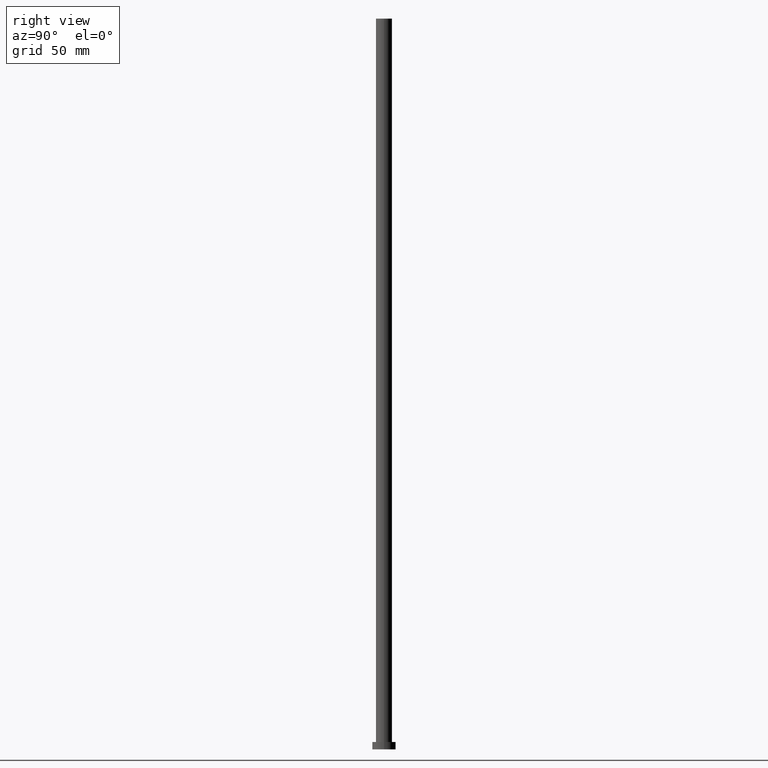
[diagram: clean part render]
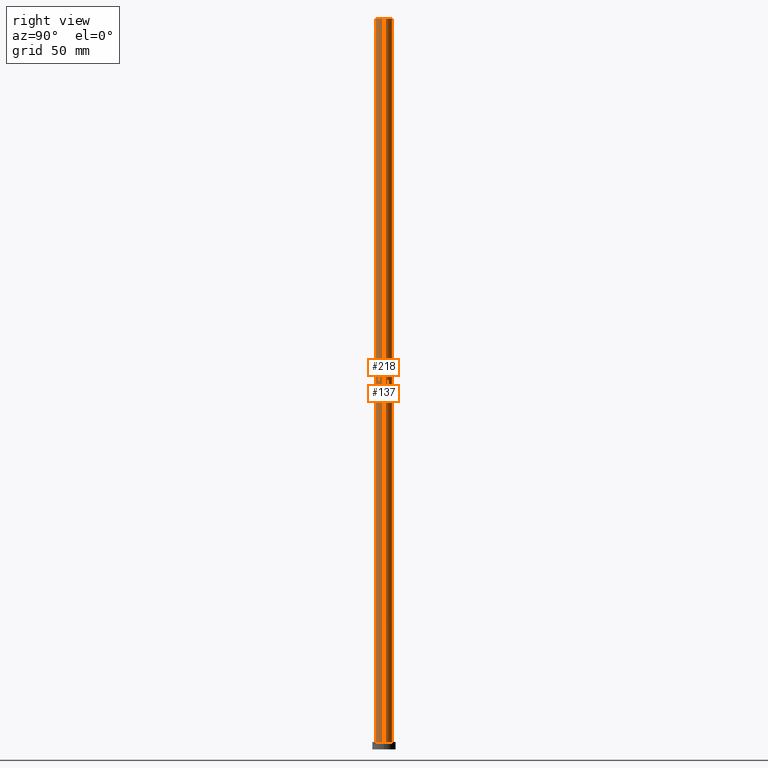
[diagram: same view with one multi-face feature highlighted, each face labeled with its STEP entity id]
A machine part, right view. The highlighted faces form ONE feature: a constant-radius fillet chain: 2 tangent blend faces with common blend radius 5.5 mm. The faces share edges in the B-rep.
Their STEP definitions:
[1] entity #137 (Cylinder):
#5 = VERTEX_POINT ( 'NONE', #83 ) ;
#6 = CARTESIAN_POINT ( 'NONE',  ( -5.500000000000000000, 0.000000000000000000, 500.0000000000000000 ) ) ;
#8 = LINE ( 'NONE', #6, #42 ) ;
#14 = DIRECTION ( 'NONE',  ( -0.000000000000000000, -0.000000000000000000, -1.000000000000000000 ) ) ;
#29 = ORIENTED_EDGE ( 'NONE', *, *, #49, .F. ) ;
#33 = ORIENTED_EDGE ( 'NONE', *, *, #92, .T. ) ;
#34 = DIRECTION ( 'NONE',  ( -0.000000000000000000, -0.000000000000000000, -1.000000000000000000 ) ) ;
#38 = EDGE_CURVE ( 'NONE', #182, #5, #187, .T. ) ;
#42 = VECTOR ( 'NONE', #146, 1000.000000000000000 ) ;
#49 = EDGE_CURVE ( 'NONE', #134, #5, #8, .T. ) ;
#53 = DIRECTION ( 'NONE',  ( -1.000000000000000000, 0.000000000000000000, 0.000000000000000000 ) ) ;
#61 = LINE ( 'NONE', #127, #147 ) ;
#63 = EDGE_LOOP ( 'NONE', ( #95, #33, #249, #29 ) ) ;
#68 = CARTESIAN_POINT ( 'NONE',  ( -5.500000000000000000, 0.000000000000000000, 500.0000000000000000 ) ) ;
#83 = CARTESIAN_POINT ( 'NONE',  ( -5.500000000000000000, 0.000000000000000000, 5.000000000000000000 ) ) ;
#91 = DIRECTION ( 'NONE',  ( 0.000000000000000000, 0.000000000000000000, 1.000000000000000000 ) ) ;
#92 = EDGE_CURVE ( 'NONE', #148, #182, #61, .T. ) ;
#95 = ORIENTED_EDGE ( 'NONE', *, *, #178, .F. ) ;
#99 = DIRECTION ( 'NONE',  ( 1.000000000000000000, 0.000000000000000000, 0.000000000000000000 ) ) ;
#111 = CARTESIAN_POINT ( 'NONE',  ( 0.000000000000000000, 0.000000000000000000, 500.0000000000000000 ) ) ;
#127 = CARTESIAN_POINT ( 'NONE',  ( 5.500000000000000000, 6.735557395310442023E-16, 500.0000000000000000 ) ) ;
#128 = AXIS2_PLACEMENT_3D ( 'NONE', #171, #245, #99 ) ;
#134 = VERTEX_POINT ( 'NONE', #68 ) ;
#135 = CARTESIAN_POINT ( 'NONE',  ( 5.500000000000000000, 6.735557395310442023E-16, 500.0000000000000000 ) ) ;
#137 = ADVANCED_FACE ( 'NONE', ( #233 ), #158, .T. ) ;
#143 = CIRCLE ( 'NONE', #204, 5.500000000000000000 ) ;
#146 = DIRECTION ( 'NONE',  ( -0.000000000000000000, -0.000000000000000000, -1.000000000000000000 ) ) ;
#147 = VECTOR ( 'NONE', #14, 1000.000000000000000 ) ;
#148 = VERTEX_POINT ( 'NONE', #135 ) ;
#154 = CARTESIAN_POINT ( 'NONE',  ( 0.000000000000000000, 0.000000000000000000, 500.0000000000000000 ) ) ;
#158 = CYLINDRICAL_SURFACE ( 'NONE', #231, 5.500000000000000000 ) ;
#171 = CARTESIAN_POINT ( 'NONE',  ( 0.000000000000000000, 0.000000000000000000, 5.000000000000000000 ) ) ;
#176 = CARTESIAN_POINT ( 'NONE',  ( 5.500000000000000000, 6.735557395310442023E-16, 5.000000000000000000 ) ) ;
#178 = EDGE_CURVE ( 'NONE', #148, #134, #143, .T. ) ;
#182 = VERTEX_POINT ( 'NONE', #176 ) ;
#187 = CIRCLE ( 'NONE', #128, 5.500000000000000000 ) ;
#204 = AXIS2_PLACEMENT_3D ( 'NONE', #154, #91, #254 ) ;
#231 = AXIS2_PLACEMENT_3D ( 'NONE', #111, #34, #53 ) ;
#233 = FACE_OUTER_BOUND ( 'NONE', #63, .T. ) ;
#245 = DIRECTION ( 'NONE',  ( 0.000000000000000000, 0.000000000000000000, 1.000000000000000000 ) ) ;
#249 = ORIENTED_EDGE ( 'NONE', *, *, #38, .T. ) ;
#254 = DIRECTION ( 'NONE',  ( 1.000000000000000000, 0.000000000000000000, 0.000000000000000000 ) ) ;
[2] entity #218 (Cylinder):
#5 = VERTEX_POINT ( 'NONE', #83 ) ;
#6 = CARTESIAN_POINT ( 'NONE',  ( -5.500000000000000000, 0.000000000000000000, 500.0000000000000000 ) ) ;
#7 = FACE_OUTER_BOUND ( 'NONE', #27, .T. ) ;
#8 = LINE ( 'NONE', #6, #42 ) ;
#14 = DIRECTION ( 'NONE',  ( -0.000000000000000000, -0.000000000000000000, -1.000000000000000000 ) ) ;
#15 = CARTESIAN_POINT ( 'NONE',  ( 0.000000000000000000, 0.000000000000000000, 500.0000000000000000 ) ) ;
#17 = CIRCLE ( 'NONE', #211, 5.500000000000000000 ) ;
#23 = CIRCLE ( 'NONE', #64, 5.500000000000000000 ) ;
#27 = EDGE_LOOP ( 'NONE', ( #247, #141, #173, #236 ) ) ;
#39 = CYLINDRICAL_SURFACE ( 'NONE', #226, 5.500000000000000000 ) ;
#42 = VECTOR ( 'NONE', #146, 1000.000000000000000 ) ;
#49 = EDGE_CURVE ( 'NONE', #134, #5, #8, .T. ) ;
#61 = LINE ( 'NONE', #127, #147 ) ;
#64 = AXIS2_PLACEMENT_3D ( 'NONE', #15, #191, #87 ) ;
#68 = CARTESIAN_POINT ( 'NONE',  ( -5.500000000000000000, 0.000000000000000000, 500.0000000000000000 ) ) ;
#75 = CARTESIAN_POINT ( 'NONE',  ( 0.000000000000000000, 0.000000000000000000, 500.0000000000000000 ) ) ;
#83 = CARTESIAN_POINT ( 'NONE',  ( -5.500000000000000000, 0.000000000000000000, 5.000000000000000000 ) ) ;
#85 = DIRECTION ( 'NONE',  ( 1.000000000000000000, 0.000000000000000000, 0.000000000000000000 ) ) ;
#87 = DIRECTION ( 'NONE',  ( 1.000000000000000000, 0.000000000000000000, 0.000000000000000000 ) ) ;
#92 = EDGE_CURVE ( 'NONE', #148, #182, #61, .T. ) ;
#93 = CARTESIAN_POINT ( 'NONE',  ( 0.000000000000000000, 0.000000000000000000, 5.000000000000000000 ) ) ;
#109 = EDGE_CURVE ( 'NONE', #134, #148, #23, .T. ) ;
#127 = CARTESIAN_POINT ( 'NONE',  ( 5.500000000000000000, 6.735557395310442023E-16, 500.0000000000000000 ) ) ;
#134 = VERTEX_POINT ( 'NONE', #68 ) ;
#135 = CARTESIAN_POINT ( 'NONE',  ( 5.500000000000000000, 6.735557395310442023E-16, 500.0000000000000000 ) ) ;
#141 = ORIENTED_EDGE ( 'NONE', *, *, #109, .F. ) ;
#146 = DIRECTION ( 'NONE',  ( -0.000000000000000000, -0.000000000000000000, -1.000000000000000000 ) ) ;
#147 = VECTOR ( 'NONE', #14, 1000.000000000000000 ) ;
#148 = VERTEX_POINT ( 'NONE', #135 ) ;
#149 = DIRECTION ( 'NONE',  ( 0.000000000000000000, 0.000000000000000000, 1.000000000000000000 ) ) ;
#161 = DIRECTION ( 'NONE',  ( -0.000000000000000000, -0.000000000000000000, -1.000000000000000000 ) ) ;
#173 = ORIENTED_EDGE ( 'NONE', *, *, #49, .T. ) ;
#176 = CARTESIAN_POINT ( 'NONE',  ( 5.500000000000000000, 6.735557395310442023E-16, 5.000000000000000000 ) ) ;
#182 = VERTEX_POINT ( 'NONE', #176 ) ;
#191 = DIRECTION ( 'NONE',  ( 0.000000000000000000, 0.000000000000000000, 1.000000000000000000 ) ) ;
#211 = AXIS2_PLACEMENT_3D ( 'NONE', #93, #149, #85 ) ;
#218 = ADVANCED_FACE ( 'NONE', ( #7 ), #39, .T. ) ;
#226 = AXIS2_PLACEMENT_3D ( 'NONE', #75, #161, #237 ) ;
#236 = ORIENTED_EDGE ( 'NONE', *, *, #248, .T. ) ;
#237 = DIRECTION ( 'NONE',  ( -1.000000000000000000, 0.000000000000000000, 0.000000000000000000 ) ) ;
#247 = ORIENTED_EDGE ( 'NONE', *, *, #92, .F. ) ;
#248 = EDGE_CURVE ( 'NONE', #5, #182, #17, .T. ) ;